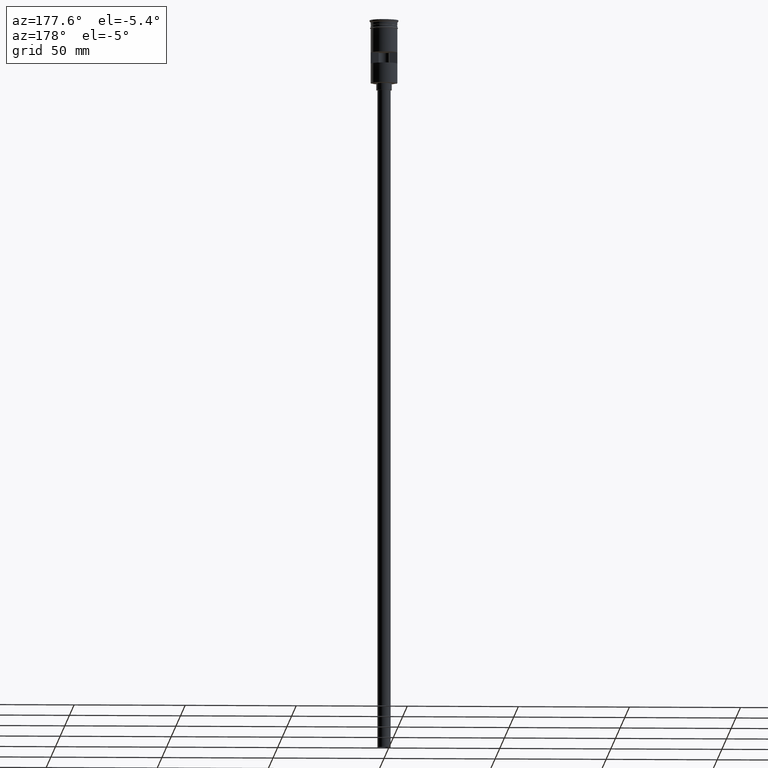
[diagram: clean part render]
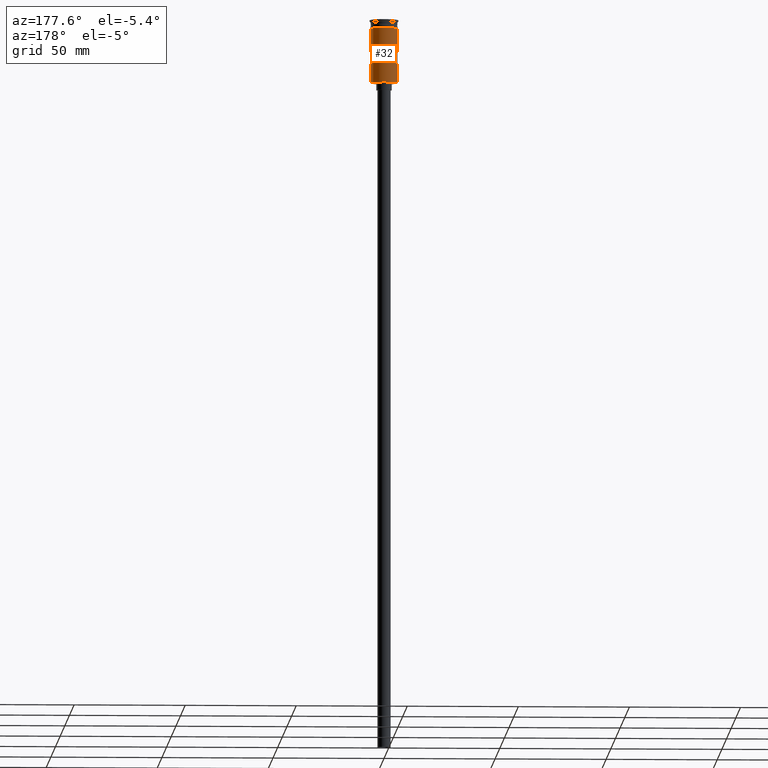
[diagram: same view with one face highlighted and labeled with its STEP entity id]
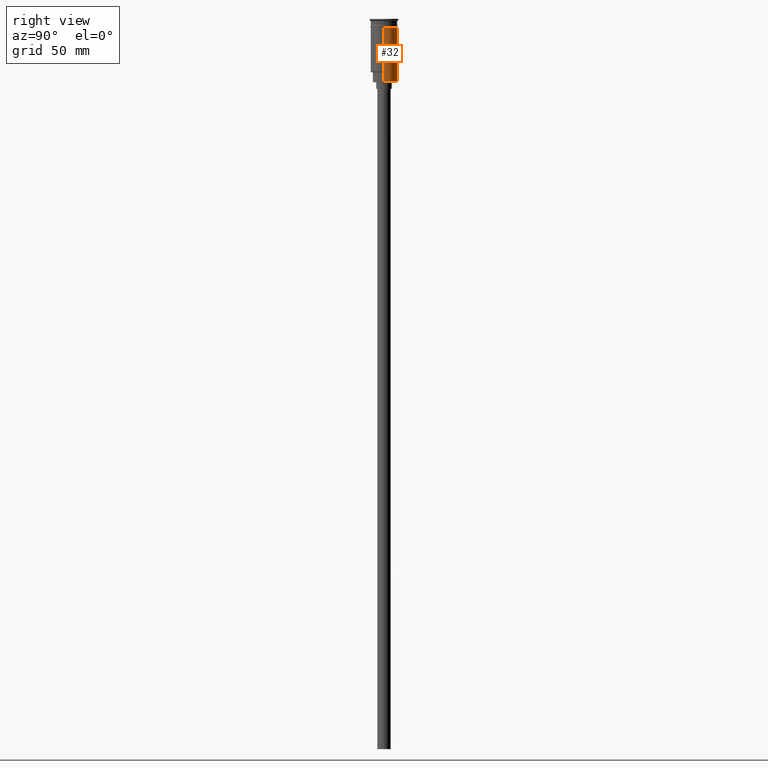
[diagram: same view with one face highlighted and labeled with its STEP entity id]
A machine part, auxiliary view. The second image highlights one B-rep face of the part: STEP entity #32.
A second angle (right view) of the same face is appended — the face is thin or edge-on in the first view.
In plain terms, the highlighted cylindrical surface (edge-blend (fillet) strip) has radius 6 mm, axis along (-0, -0, 1).
Its self-contained STEP definition (entity closure, byte-faithful):
#13 = AXIS2_PLACEMENT_3D ( 'NONE', #1129, #31, #147 ) ;
#31 = DIRECTION ( 'NONE',  ( 0.000000000000000000, 0.000000000000000000, 1.000000000000000000 ) ) ;
#32 = ADVANCED_FACE ( 'NONE', ( #264, #138 ), #1040, .T. ) ;
#41 = VECTOR ( 'NONE', #1571, 1000.000000000000000 ) ;
#64 = DIRECTION ( 'NONE',  ( -0.000000000000000000, -0.000000000000000000, 1.000000000000000000 ) ) ;
#67 = VERTEX_POINT ( 'NONE', #234 ) ;
#70 = CIRCLE ( 'NONE', #1472, 6.000000000000000000 ) ;
#123 = LINE ( 'NONE', #599, #404 ) ;
#125 = EDGE_CURVE ( 'NONE', #685, #1279, #1354, .T. ) ;
#138 = FACE_OUTER_BOUND ( 'NONE', #310, .T. ) ;
#147 = DIRECTION ( 'NONE',  ( -1.000000000000000000, 0.000000000000000000, 0.000000000000000000 ) ) ;
#149 = CIRCLE ( 'NONE', #363, 5.999999999999997335 ) ;
#152 = DIRECTION ( 'NONE',  ( -0.000000000000000000, -0.000000000000000000, 1.000000000000000000 ) ) ;
#172 = VERTEX_POINT ( 'NONE', #261 ) ;
#189 = VERTEX_POINT ( 'NONE', #1533 ) ;
#234 = CARTESIAN_POINT ( 'NONE',  ( -5.999999999999994671, 0.000000000000000000, -23.79999999999995453 ) ) ;
#245 = CARTESIAN_POINT ( 'NONE',  ( 5.999999999999997335, 7.347880794884115792E-16, -23.79999999999995453 ) ) ;
#261 = CARTESIAN_POINT ( 'NONE',  ( -6.000000000000000000, 7.347880794884119736E-16, -3.799999999999998490 ) ) ;
#264 = FACE_BOUND ( 'NONE', #1305, .T. ) ;
#290 = ORIENTED_EDGE ( 'NONE', *, *, #1369, .T. ) ;
#293 = CARTESIAN_POINT ( 'NONE',  ( -5.969924622639716461, 0.5999999999999997558, 0.000000000000000000 ) ) ;
#300 = ORIENTED_EDGE ( 'NONE', *, *, #1052, .F. ) ;
#310 = EDGE_LOOP ( 'NONE', ( #315, #1414, #485, #497, #1174, #290 ) ) ;
#315 = ORIENTED_EDGE ( 'NONE', *, *, #462, .T. ) ;
#321 = ORIENTED_EDGE ( 'NONE', *, *, #892, .F. ) ;
#353 = CARTESIAN_POINT ( 'NONE',  ( 0.000000000000000000, 0.000000000000000000, -3.799999999999998490 ) ) ;
#359 = VECTOR ( 'NONE', #601, 1000.000000000000000 ) ;
#363 = AXIS2_PLACEMENT_3D ( 'NONE', #1210, #972, #1089 ) ;
#384 = CARTESIAN_POINT ( 'NONE',  ( 5.999999999999994671, 7.347880794884112834E-16, -28.50000000000000000 ) ) ;
#404 = VECTOR ( 'NONE', #1476, 1000.000000000000000 ) ;
#462 = EDGE_CURVE ( 'NONE', #189, #67, #1170, .T. ) ;
#485 = ORIENTED_EDGE ( 'NONE', *, *, #1395, .F. ) ;
#497 = ORIENTED_EDGE ( 'NONE', *, *, #1230, .F. ) ;
#520 = LINE ( 'NONE', #293, #1227 ) ;
#573 = DIRECTION ( 'NONE',  ( 1.000000000000000000, 0.000000000000000000, 0.000000000000000000 ) ) ;
#576 = EDGE_CURVE ( 'NONE', #973, #1517, #1195, .T. ) ;
#599 = CARTESIAN_POINT ( 'NONE',  ( 5.969924622639716461, 0.5999999999999997558, 0.000000000000000000 ) ) ;
#601 = DIRECTION ( 'NONE',  ( -0.000000000000000000, -0.000000000000000000, 1.000000000000000000 ) ) ;
#674 = CARTESIAN_POINT ( 'NONE',  ( 5.999999999999997335, 0.000000000000000000, 0.000000000000000000 ) ) ;
#685 = VERTEX_POINT ( 'NONE', #1231 ) ;
#686 = AXIS2_PLACEMENT_3D ( 'NONE', #1574, #1062, #1561 ) ;
#691 = DIRECTION ( 'NONE',  ( -0.000000000000000000, -0.000000000000000000, 1.000000000000000000 ) ) ;
#698 = LINE ( 'NONE', #1179, #41 ) ;
#769 = EDGE_CURVE ( 'NONE', #67, #172, #698, .T. ) ;
#784 = LINE ( 'NONE', #674, #1328 ) ;
#787 = ORIENTED_EDGE ( 'NONE', *, *, #125, .F. ) ;
#852 = CARTESIAN_POINT ( 'NONE',  ( -5.969924622639716461, 0.5999999999999999778, -14.49999999999999822 ) ) ;
#883 = CARTESIAN_POINT ( 'NONE',  ( 5.969924622639712908, 0.5999999999999999778, -14.49999999999999822 ) ) ;
#892 = EDGE_CURVE ( 'NONE', #1049, #685, #123, .T. ) ;
#893 = ORIENTED_EDGE ( 'NONE', *, *, #1429, .F. ) ;
#894 = CARTESIAN_POINT ( 'NONE',  ( 5.999999999999994671, 7.347880794884112834E-16, -28.29999999999999716 ) ) ;
#916 = VERTEX_POINT ( 'NONE', #852 ) ;
#926 = CARTESIAN_POINT ( 'NONE',  ( 6.000000000000000000, 0.000000000000000000, -3.799999999999998490 ) ) ;
#972 = DIRECTION ( 'NONE',  ( 0.000000000000000000, 0.000000000000000000, 1.000000000000000000 ) ) ;
#973 = VERTEX_POINT ( 'NONE', #894 ) ;
#986 = AXIS2_PLACEMENT_3D ( 'NONE', #1546, #1382, #1462 ) ;
#994 = VERTEX_POINT ( 'NONE', #926 ) ;
#1040 = CYLINDRICAL_SURFACE ( 'NONE', #986, 5.999999999999997335 ) ;
#1049 = VERTEX_POINT ( 'NONE', #883 ) ;
#1052 = EDGE_CURVE ( 'NONE', #1279, #916, #520, .T. ) ;
#1062 = DIRECTION ( 'NONE',  ( -0.000000000000000000, -3.212450881438533227E-16, -1.000000000000000000 ) ) ;
#1089 = DIRECTION ( 'NONE',  ( -1.000000000000000000, 0.000000000000000000, 0.000000000000000000 ) ) ;
#1097 = VECTOR ( 'NONE', #1418, 1000.000000000000000 ) ;
#1129 = CARTESIAN_POINT ( 'NONE',  ( 0.000000000000000000, 0.000000000000000000, -19.50000000000000355 ) ) ;
#1170 = LINE ( 'NONE', #1390, #1097 ) ;
#1174 = ORIENTED_EDGE ( 'NONE', *, *, #576, .F. ) ;
#1179 = CARTESIAN_POINT ( 'NONE',  ( -5.999999999999997335, 7.347880794884116778E-16, 0.000000000000000000 ) ) ;
#1195 = LINE ( 'NONE', #384, #359 ) ;
#1210 = CARTESIAN_POINT ( 'NONE',  ( 0.000000000000000000, 0.000000000000000000, -28.29999999999999716 ) ) ;
#1227 = VECTOR ( 'NONE', #152, 1000.000000000000000 ) ;
#1230 = EDGE_CURVE ( 'NONE', #1517, #994, #784, .T. ) ;
#1231 = CARTESIAN_POINT ( 'NONE',  ( 5.969924622639712908, 0.5999999999999999778, -19.50000000000000355 ) ) ;
#1268 = CARTESIAN_POINT ( 'NONE',  ( -5.969924622639716461, 0.5999999999999997558, -19.50000000000000355 ) ) ;
#1279 = VERTEX_POINT ( 'NONE', #1268 ) ;
#1305 = EDGE_LOOP ( 'NONE', ( #321, #893, #300, #787 ) ) ;
#1328 = VECTOR ( 'NONE', #64, 1000.000000000000000 ) ;
#1354 = CIRCLE ( 'NONE', #13, 5.999999999999997335 ) ;
#1369 = EDGE_CURVE ( 'NONE', #973, #189, #149, .T. ) ;
#1380 = CIRCLE ( 'NONE', #686, 5.999999999999997335 ) ;
#1382 = DIRECTION ( 'NONE',  ( -0.000000000000000000, -0.000000000000000000, 1.000000000000000000 ) ) ;
#1390 = CARTESIAN_POINT ( 'NONE',  ( -5.999999999999994671, 0.000000000000000000, -28.50000000000000000 ) ) ;
#1395 = EDGE_CURVE ( 'NONE', #994, #172, #70, .T. ) ;
#1414 = ORIENTED_EDGE ( 'NONE', *, *, #769, .T. ) ;
#1418 = DIRECTION ( 'NONE',  ( -0.000000000000000000, -0.000000000000000000, 1.000000000000000000 ) ) ;
#1429 = EDGE_CURVE ( 'NONE', #916, #1049, #1380, .T. ) ;
#1462 = DIRECTION ( 'NONE',  ( 1.000000000000000000, 0.000000000000000000, 0.000000000000000000 ) ) ;
#1472 = AXIS2_PLACEMENT_3D ( 'NONE', #353, #691, #573 ) ;
#1476 = DIRECTION ( 'NONE',  ( 0.000000000000000000, 0.000000000000000000, -1.000000000000000000 ) ) ;
#1517 = VERTEX_POINT ( 'NONE', #245 ) ;
#1533 = CARTESIAN_POINT ( 'NONE',  ( -5.999999999999994671, 0.000000000000000000, -28.29999999999999716 ) ) ;
#1546 = CARTESIAN_POINT ( 'NONE',  ( 0.000000000000000000, 0.000000000000000000, 0.000000000000000000 ) ) ;
#1561 = DIRECTION ( 'NONE',  ( 0.000000000000000000, -1.000000000000000000, 2.891205793294679805E-16 ) ) ;
#1571 = DIRECTION ( 'NONE',  ( -0.000000000000000000, -0.000000000000000000, 1.000000000000000000 ) ) ;
#1574 = CARTESIAN_POINT ( 'NONE',  ( 0.000000000000000000, 0.000000000000000000, -14.49999999999999822 ) ) ;